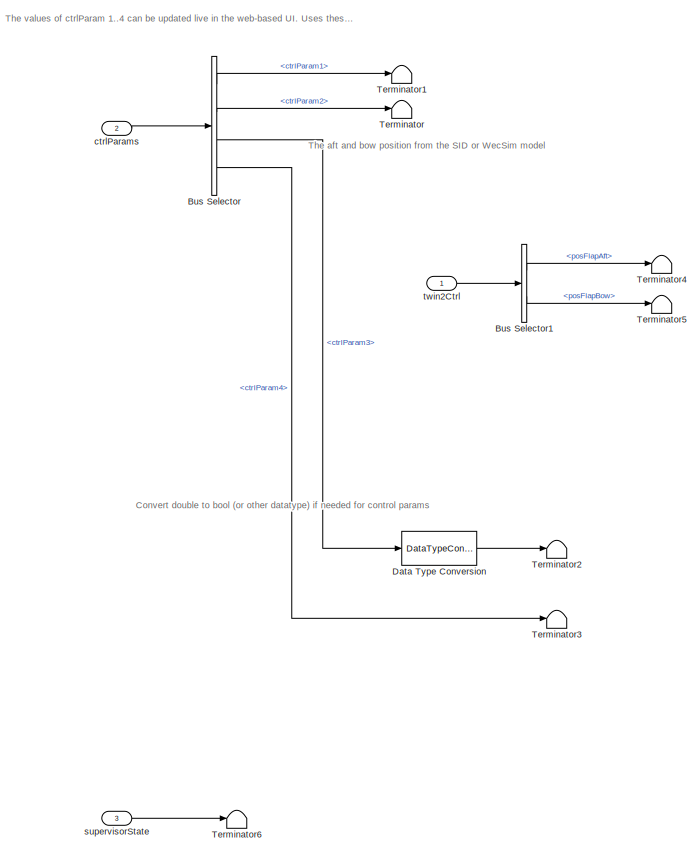
[diagram: root canvas - part 1/2, left side, full height]
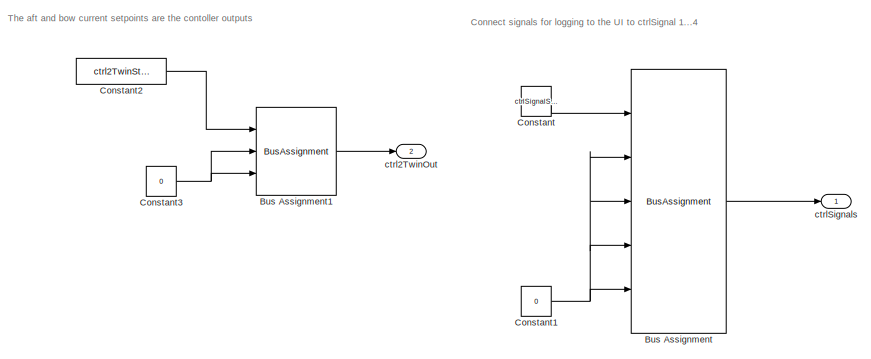
[diagram: root canvas - part 2/2, middle right region]
MODEL slx_c06f5503757d
KIND model
CONFIG AbsTol = auto
CONFIG EnableMultiTasking = off
CONFIG FixedStep = Ts
CONFIG MaxStep = auto
CONFIG MinStep = auto
CONFIG RelTol = 1e-3
CONFIG SampleTimeConstraint = Unconstrained
CONFIG SolverName = FixedStepAuto
CONFIG StartTime = 0.0
CONFIG StopTime = 20
BLOCK [BusAssignment] Bus Assignment
  AssignedSignals = ctrlSignal1,ctrlSignal2,ctrlSignal3,ctrlSignal4
  Ports = [5, 1]
BLOCK [BusAssignment] Bus Assignment1
  AssignedSignals = curAft,curBow
  Ports = [3, 1]
BLOCK [BusSelector] Bus Selector
  OutputSignals = ctrlParam1,ctrlParam2,ctrlParam3,ctrlParam4
  Ports = [1, 4]
BLOCK [BusSelector] Bus Selector1
  OutputSignals = posFlapAft,posFlapBow
  Ports = [1, 2]
BLOCK [Constant] Constant
  OutDataTypeStr = Bus: ctrlSignalBus
  Value = ctrlSignalStruct
BLOCK [Constant] Constant1
  Value = 0
BLOCK [Constant] Constant2
  OutDataTypeStr = Bus: ctrl2TwinBus
  Value = ctrl2TwinStruct
BLOCK [Constant] Constant3
  Value = 0
BLOCK [DataTypeConversion] Data Type Conversion
  OutDataTypeStr = boolean
  RndMeth = Floor
  SaturateOnIntegerOverflow = off
BLOCK [Terminator] Terminator
BLOCK [Terminator] Terminator1
BLOCK [Terminator] Terminator2
BLOCK [Terminator] Terminator3
BLOCK [Terminator] Terminator4
BLOCK [Terminator] Terminator5
BLOCK [Terminator] Terminator6
BLOCK [Outport] ctrl2TwinOut
  OutDataTypeStr = Bus: ctrl2TwinBus
  Port = 2
BLOCK [Inport] ctrlParams
  OutDataTypeStr = Bus: ctrlParamBus
  Port = 2
BLOCK [Outport] ctrlSignals
  OutDataTypeStr = Bus: ctrlSignalBus
BLOCK [Inport] supervisorState
  OutDataTypeStr = int32
  Port = 3
BLOCK [Inport] twin2Ctrl
  OutDataTypeStr = Bus: twin2CtrlBus
ANNOTATION (root): Connect signals for logging to the UI to ctrlSignal 1...4
ANNOTATION (root): Convert double to bool (or other datatype) if needed for control params
ANNOTATION (root): The aft and bow current setpoints are the contoller outputs
ANNOTATION (root): The aft and bow position from the SID or WecSim model
ANNOTATION (root): The values of ctrlParam 1..4 can be updated live in the web-based UI. Uses these for your controller parameters, e.g. damping, spring etc.
LINE Bus Assignment1:1 -> ctrl2TwinOut:1
LINE Bus Assignment:1 -> ctrlSignals:1
LINE Bus Selector1:1 -> Terminator4:1
LINE Bus Selector1:2 -> Terminator5:1
LINE Bus Selector:1 -> Terminator1:1
LINE Bus Selector:2 -> Terminator:1
LINE Bus Selector:3 -> Data Type Conversion:1
LINE Bus Selector:4 -> Terminator3:1
NET Constant1:1 -> Bus Assignment:2, Bus Assignment:3, Bus Assignment:4, Bus Assignment:5
LINE Constant2:1 -> Bus Assignment1:1
NET Constant3:1 -> Bus Assignment1:2, Bus Assignment1:3
LINE Constant:1 -> Bus Assignment:1
LINE Data Type Conversion:1 -> Terminator2:1
LINE ctrlParams:1 -> Bus Selector:1
LINE supervisorState:1 -> Terminator6:1
LINE twin2Ctrl:1 -> Bus Selector1:1
note: NET lines group one-source signal fan-out (src -> all destinations, sorted); 1:1 wires keep LINE
